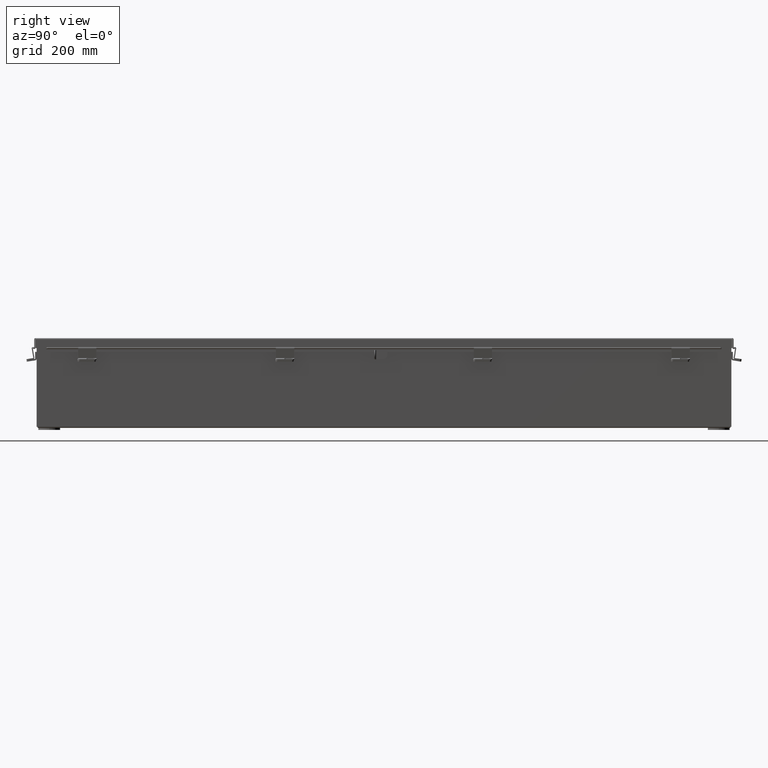
[diagram: clean part render]
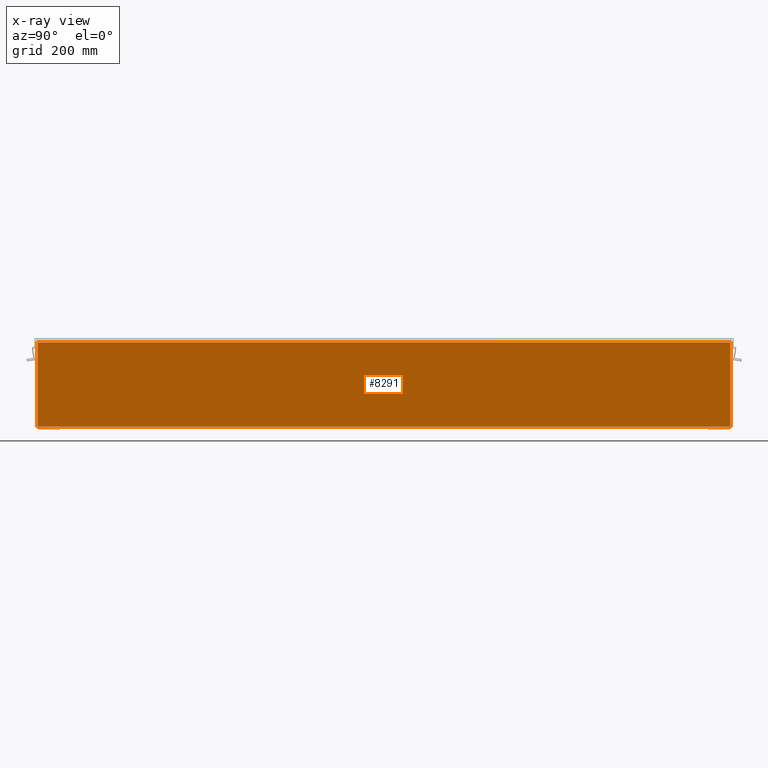
[diagram: x-ray — body ghosted, one internal face saturated and labeled with its STEP entity id]
A machine part, right view, then the same camera in x-ray: the body is ghosted and one INTERNAL B-rep face — a face not visible from any outside direction — is saturated and labeled: STEP entity #8291.
In plain terms, the highlighted planar face has unit normal (-1, 0, 0).
Its self-contained STEP definition (entity closure, byte-faithful):
#945 = CARTESIAN_POINT ( 'NONE',  ( 2.925300000000017800, -23.92529999999998600, 5.837599999999999200 ) ) ;
#1783 = AXIS2_PLACEMENT_3D ( 'NONE', #6968, #12517, #12637 ) ;
#4014 = CARTESIAN_POINT ( 'NONE',  ( 2.925300000000017800, 23.92529999999999600, 5.837599999999999200 ) ) ;
#4456 = EDGE_CURVE ( 'NONE', #8205, #31706, #9401, .T. ) ;
#5171 = ORIENTED_EDGE ( 'NONE', *, *, #14226, .F. ) ;
#6025 = LINE ( 'NONE', #4014, #24100 ) ;
#6493 = VECTOR ( 'NONE', #29420, 39.37007874015748100 ) ;
#6968 = CARTESIAN_POINT ( 'NONE',  ( 2.925299999999997300, 0.0000000000000000000, -1.036394832596379800E-014 ) ) ;
#7128 = CARTESIAN_POINT ( 'NONE',  ( 2.925299999999997300, -23.92529999999998200, 0.01300000000000011600 ) ) ;
#8205 = VERTEX_POINT ( 'NONE', #945 ) ;
#8291 = ADVANCED_FACE ( 'NONE', ( #10772 ), #9806, .T. ) ;
#8531 = VECTOR ( 'NONE', #9757, 39.37007874015748100 ) ;
#8794 = LINE ( 'NONE', #15727, #31335 ) ;
#9401 = LINE ( 'NONE', #23842, #8531 ) ;
#9757 = DIRECTION ( 'NONE',  ( -3.455316574900958600E-015, -0.0000000000000000000, -1.000000000000000000 ) ) ;
#9806 = PLANE ( 'NONE',  #1783 ) ;
#9807 = CARTESIAN_POINT ( 'NONE',  ( 2.925299999999997300, 23.92529999999998900, 0.01300000000000011600 ) ) ;
#10119 = ORIENTED_EDGE ( 'NONE', *, *, #4456, .F. ) ;
#10772 = FACE_OUTER_BOUND ( 'NONE', #12559, .T. ) ;
#12517 = DIRECTION ( 'NONE',  ( -1.000000000000000000, 0.0000000000000000000, 3.455316574900958600E-015 ) ) ;
#12559 = EDGE_LOOP ( 'NONE', ( #10119, #16610, #5171, #32902 ) ) ;
#12637 = DIRECTION ( 'NONE',  ( 3.455316574900958600E-015, 0.0000000000000000000, 1.000000000000000000 ) ) ;
#14226 = EDGE_CURVE ( 'NONE', #18544, #21966, #29034, .T. ) ;
#15727 = CARTESIAN_POINT ( 'NONE',  ( 2.925299999999997300, -23.92529999999998600, 0.01300000000000011600 ) ) ;
#16610 = ORIENTED_EDGE ( 'NONE', *, *, #34403, .F. ) ;
#18544 = VERTEX_POINT ( 'NONE', #9807 ) ;
#19833 = CARTESIAN_POINT ( 'NONE',  ( 2.925300000000017800, 23.92530000000000000, 5.837599999999999200 ) ) ;
#21966 = VERTEX_POINT ( 'NONE', #19833 ) ;
#23842 = CARTESIAN_POINT ( 'NONE',  ( 2.925299999999997300, -23.92529999999998600, 0.0000000000000000000 ) ) ;
#24100 = VECTOR ( 'NONE', #29416, 39.37007874015748100 ) ;
#26603 = CARTESIAN_POINT ( 'NONE',  ( 2.925300000000017800, 23.92530000000000000, 5.850600000000000000 ) ) ;
#26885 = EDGE_CURVE ( 'NONE', #31706, #18544, #8794, .T. ) ;
#29034 = LINE ( 'NONE', #26603, #6493 ) ;
#29416 = DIRECTION ( 'NONE',  ( -0.0000000000000000000, -1.000000000000000000, -0.0000000000000000000 ) ) ;
#29420 = DIRECTION ( 'NONE',  ( 3.455316574900958600E-015, -0.0000000000000000000, 1.000000000000000000 ) ) ;
#31335 = VECTOR ( 'NONE', #35467, 39.37007874015748100 ) ;
#31706 = VERTEX_POINT ( 'NONE', #7128 ) ;
#32902 = ORIENTED_EDGE ( 'NONE', *, *, #26885, .F. ) ;
#34403 = EDGE_CURVE ( 'NONE', #21966, #8205, #6025, .T. ) ;
#35467 = DIRECTION ( 'NONE',  ( 0.0000000000000000000, 1.000000000000000000, 0.0000000000000000000 ) ) ;